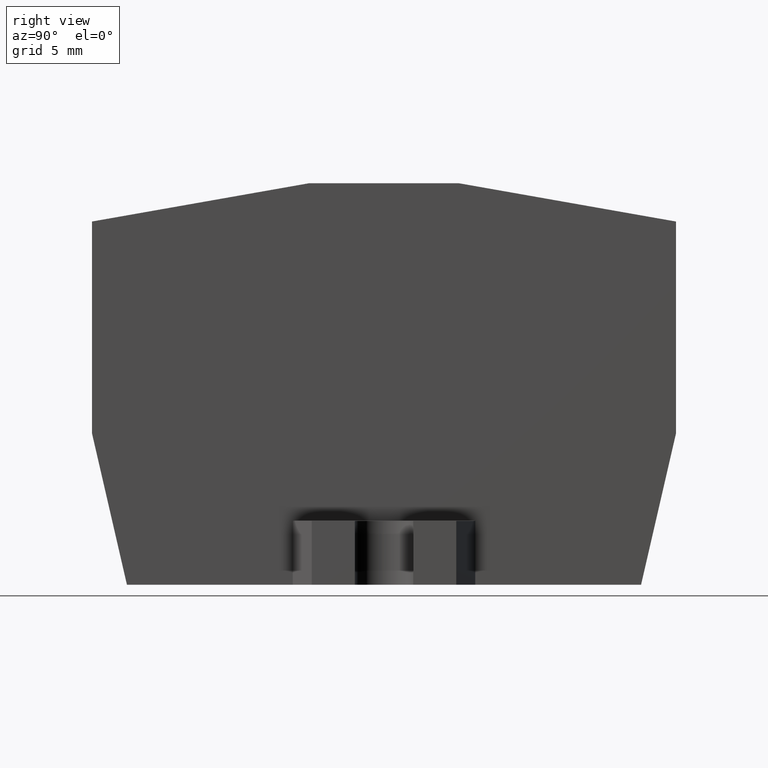
[diagram: clean part render]
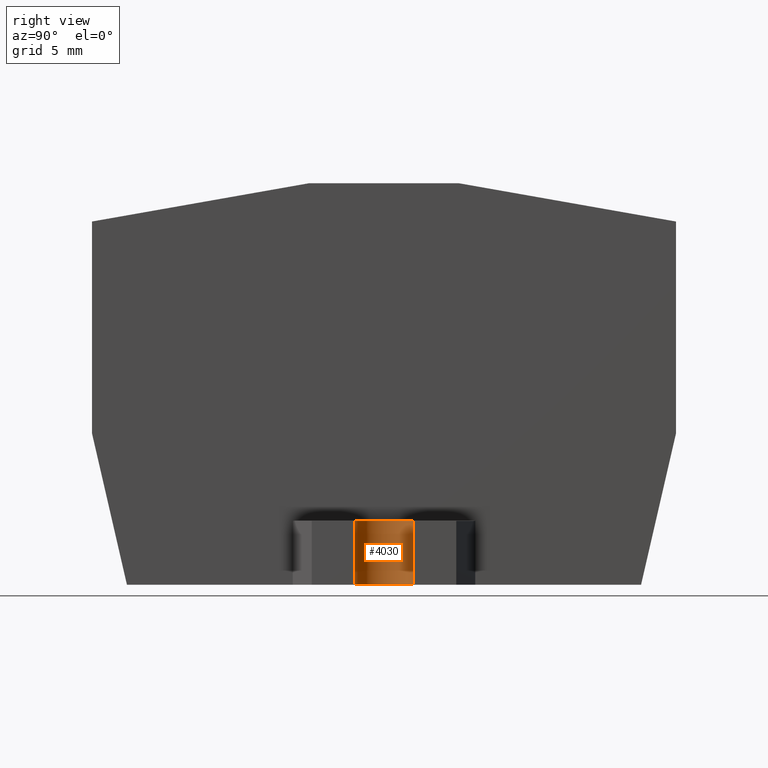
[diagram: same view with one face highlighted and labeled with its STEP entity id]
A machine part, right view. The second image highlights one B-rep face of the part: STEP entity #4030.
In plain terms, the highlighted cylindrical surface (edge-blend (fillet) strip) has radius 1.6 mm, axis along (0, 0, -1).
Its self-contained STEP definition (entity closure, byte-faithful):
#970=CARTESIAN_POINT('',(13.5335529569918,102.71779049095,
10.6277564886281));
#980=VERTEX_POINT('',#970);
#1010=CARTESIAN_POINT('',(13.5335529569918,102.71779049095,
10.6277564886281));
#1020=DIRECTION('',(0.,1.,0.));
#1030=VECTOR('',#1020,1.);
#1040=LINE('',#1010,#1030);
#1050=CARTESIAN_POINT('',(13.5335529569918,106.21779049095,
10.6277564886281));
#1060=VERTEX_POINT('',#1050);
#1070=EDGE_CURVE('',#980,#1060,#1040,.T.);
#2990=CARTESIAN_POINT('',(10.3335529569918,102.71779049095,
10.6277564886281));
#3000=VERTEX_POINT('',#2990);
#3030=CARTESIAN_POINT('',(11.9335529569918,102.71779049095,
10.6277564886281));
#3040=DIRECTION('',(0.,-1.,0.));
#3050=DIRECTION('',(-1.,0.,0.));
#3060=AXIS2_PLACEMENT_3D('',#3030,#3040,#3050);
#3070=CIRCLE('',#3060,1.59999999999999);
#3080=EDGE_CURVE('',#3000,#980,#3070,.T.);
#3790=CARTESIAN_POINT('',(11.9335529569918,102.71779049095,
10.6277564886281));
#3800=DIRECTION('',(0.,-1.,0.));
#3810=DIRECTION('',(-1.,0.,0.));
#3820=AXIS2_PLACEMENT_3D('',#3790,#3800,#3810);
#3830=CYLINDRICAL_SURFACE('',#3820,1.59999999999999);
#3840=CARTESIAN_POINT('',(10.3335529569918,102.71779049095,
10.6277564886281));
#3850=DIRECTION('',(0.,1.,0.));
#3860=VECTOR('',#3850,1.);
#3870=LINE('',#3840,#3860);
#3880=CARTESIAN_POINT('',(10.3335529569918,106.21779049095,
10.6277564886281));
#3890=VERTEX_POINT('',#3880);
#3900=EDGE_CURVE('',#3000,#3890,#3870,.T.);
#3910=ORIENTED_EDGE('',*,*,#3900,.F.);
#3920=CARTESIAN_POINT('',(11.9335529569918,106.21779049095,
10.6277564886281));
#3930=DIRECTION('',(0.,-1.,0.));
#3940=DIRECTION('',(-1.,0.,0.));
#3950=AXIS2_PLACEMENT_3D('',#3920,#3930,#3940);
#3960=CIRCLE('',#3950,1.59999999999999);
#3970=EDGE_CURVE('',#3890,#1060,#3960,.T.);
#3980=ORIENTED_EDGE('',*,*,#3970,.F.);
#3990=ORIENTED_EDGE('',*,*,#1070,.T.);
#4000=ORIENTED_EDGE('',*,*,#3080,.T.);
#4010=EDGE_LOOP('',(#4000,#3990,#3980,#3910));
#4020=FACE_OUTER_BOUND('',#4010,.T.);
#4030=ADVANCED_FACE('',(#4020),#3830,.F.);